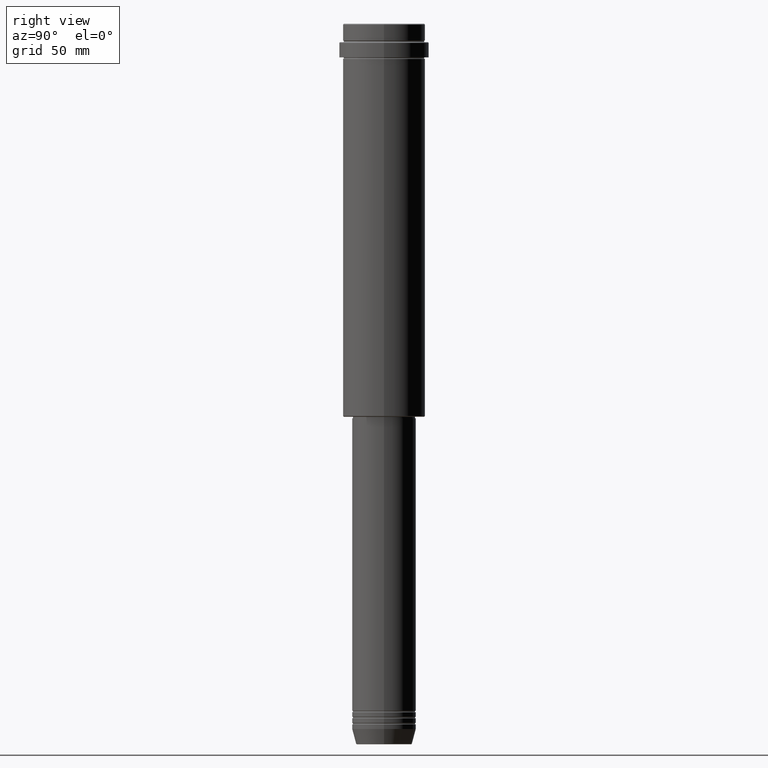
[diagram: clean part render]
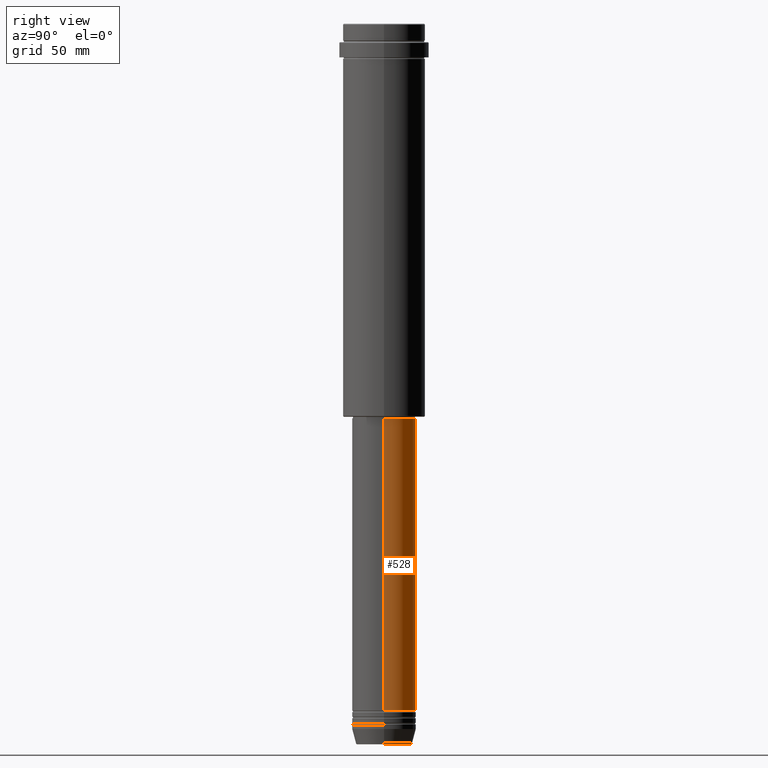
[diagram: same view with one face highlighted and labeled with its STEP entity id]
A machine part, right view. The second image highlights one B-rep face of the part: STEP entity #528.
In plain terms, the highlighted cylindrical surface (edge-blend (fillet) strip) has radius 21 mm, axis along (-0, -0, 1).
Its self-contained STEP definition (entity closure, byte-faithful):
#62 = DIRECTION ( 'NONE',  ( -0.000000000000000000, -0.000000000000000000, 1.000000000000000000 ) ) ;
#81 = ORIENTED_EDGE ( 'NONE', *, *, #512, .F. ) ;
#184 = ORIENTED_EDGE ( 'NONE', *, *, #962, .T. ) ;
#232 = VERTEX_POINT ( 'NONE', #493 ) ;
#259 = ORIENTED_EDGE ( 'NONE', *, *, #1218, .F. ) ;
#290 = DIRECTION ( 'NONE',  ( 1.000000000000000000, 0.000000000000000000, 0.000000000000000000 ) ) ;
#324 = VERTEX_POINT ( 'NONE', #794 ) ;
#359 = AXIS2_PLACEMENT_3D ( 'NONE', #500, #741, #290 ) ;
#407 = CARTESIAN_POINT ( 'NONE',  ( 0.000000000000000000, 0.000000000000000000, -259.0000000000000000 ) ) ;
#419 = DIRECTION ( 'NONE',  ( -0.000000000000000000, -0.000000000000000000, 1.000000000000000000 ) ) ;
#424 = LINE ( 'NONE', #1285, #1384 ) ;
#493 = CARTESIAN_POINT ( 'NONE',  ( -21.00000000000000000, 2.571758278209441661E-15, -450.9999999999998295 ) ) ;
#500 = CARTESIAN_POINT ( 'NONE',  ( 0.000000000000000000, 0.000000000000000000, 0.000000000000000000 ) ) ;
#508 = CYLINDRICAL_SURFACE ( 'NONE', #359, 21.00000000000000000 ) ;
#512 = EDGE_CURVE ( 'NONE', #1113, #1292, #1134, .T. ) ;
#528 = ADVANCED_FACE ( 'NONE', ( #1152 ), #508, .T. ) ;
#700 = AXIS2_PLACEMENT_3D ( 'NONE', #407, #62, #824 ) ;
#720 = EDGE_LOOP ( 'NONE', ( #1309, #184, #81, #259 ) ) ;
#741 = DIRECTION ( 'NONE',  ( -0.000000000000000000, -0.000000000000000000, 1.000000000000000000 ) ) ;
#794 = CARTESIAN_POINT ( 'NONE',  ( 21.00000000000000000, 0.000000000000000000, -450.9999999999998295 ) ) ;
#800 = AXIS2_PLACEMENT_3D ( 'NONE', #1300, #419, #852 ) ;
#822 = DIRECTION ( 'NONE',  ( -0.000000000000000000, -0.000000000000000000, 1.000000000000000000 ) ) ;
#824 = DIRECTION ( 'NONE',  ( 1.000000000000000000, 0.000000000000000000, 0.000000000000000000 ) ) ;
#852 = DIRECTION ( 'NONE',  ( 1.000000000000000000, 0.000000000000000000, 0.000000000000000000 ) ) ;
#858 = CARTESIAN_POINT ( 'NONE',  ( 21.00000000000000000, 0.000000000000000000, -259.0000000000000000 ) ) ;
#927 = CARTESIAN_POINT ( 'NONE',  ( -21.00000000000000000, 2.571758278209441661E-15, 0.000000000000000000 ) ) ;
#962 = EDGE_CURVE ( 'NONE', #232, #1292, #1354, .T. ) ;
#971 = CIRCLE ( 'NONE', #800, 21.00000000000000000 ) ;
#976 = DIRECTION ( 'NONE',  ( -0.000000000000000000, -0.000000000000000000, 1.000000000000000000 ) ) ;
#1010 = VECTOR ( 'NONE', #822, 1000.000000000000000 ) ;
#1113 = VERTEX_POINT ( 'NONE', #858 ) ;
#1134 = CIRCLE ( 'NONE', #700, 21.00000000000000000 ) ;
#1152 = FACE_OUTER_BOUND ( 'NONE', #720, .T. ) ;
#1218 = EDGE_CURVE ( 'NONE', #324, #1113, #424, .T. ) ;
#1285 = CARTESIAN_POINT ( 'NONE',  ( 21.00000000000000000, 0.000000000000000000, 0.000000000000000000 ) ) ;
#1292 = VERTEX_POINT ( 'NONE', #1305 ) ;
#1300 = CARTESIAN_POINT ( 'NONE',  ( 0.000000000000000000, 0.000000000000000000, -450.9999999999998295 ) ) ;
#1305 = CARTESIAN_POINT ( 'NONE',  ( -21.00000000000000000, 2.571758278209441661E-15, -259.0000000000000000 ) ) ;
#1309 = ORIENTED_EDGE ( 'NONE', *, *, #1351, .T. ) ;
#1351 = EDGE_CURVE ( 'NONE', #324, #232, #971, .T. ) ;
#1354 = LINE ( 'NONE', #927, #1010 ) ;
#1384 = VECTOR ( 'NONE', #976, 1000.000000000000000 ) ;